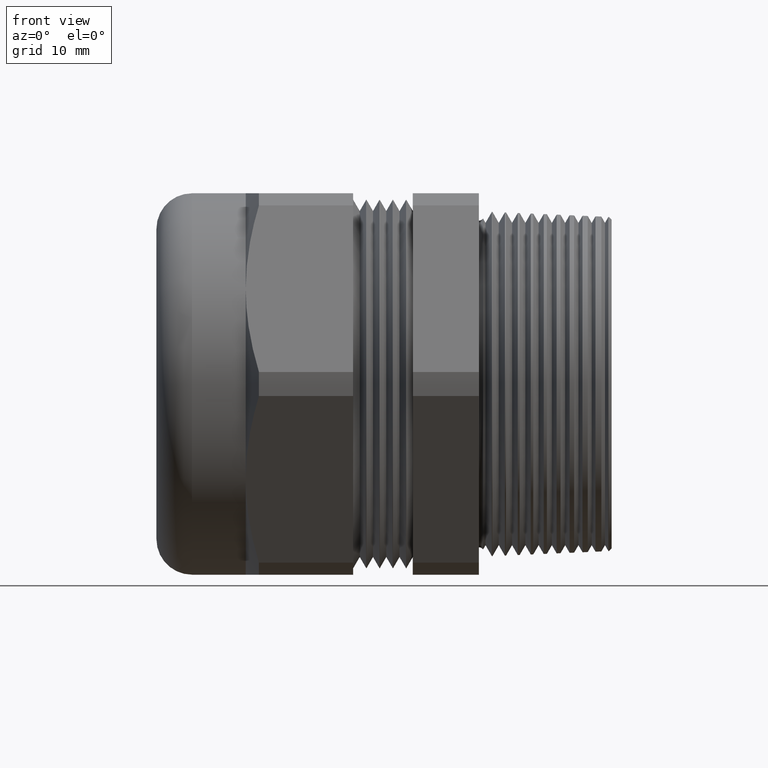
[diagram: clean part render]
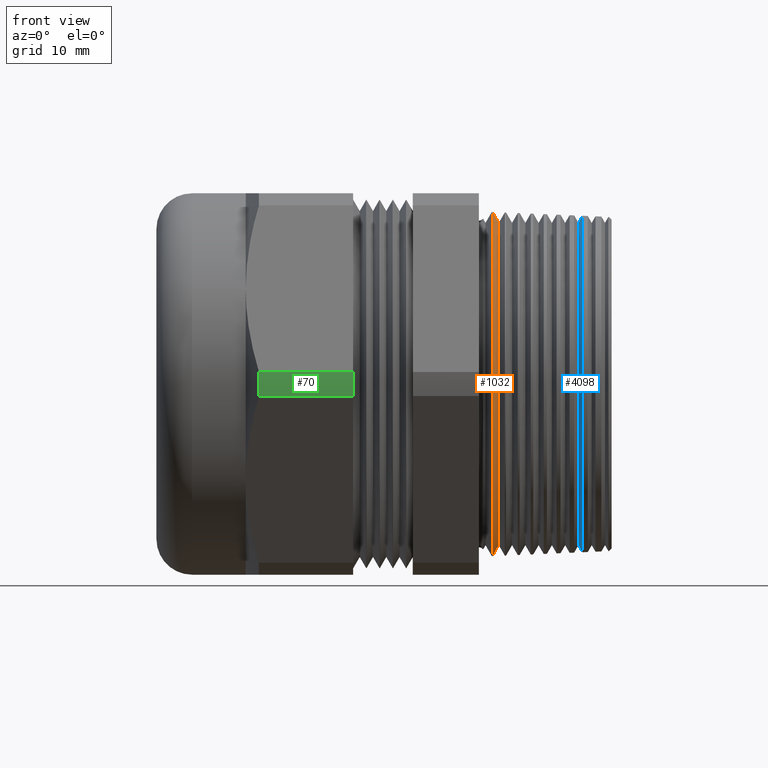
[diagram: same view with three faces highlighted in distinct colors, each labeled with its STEP entity id]
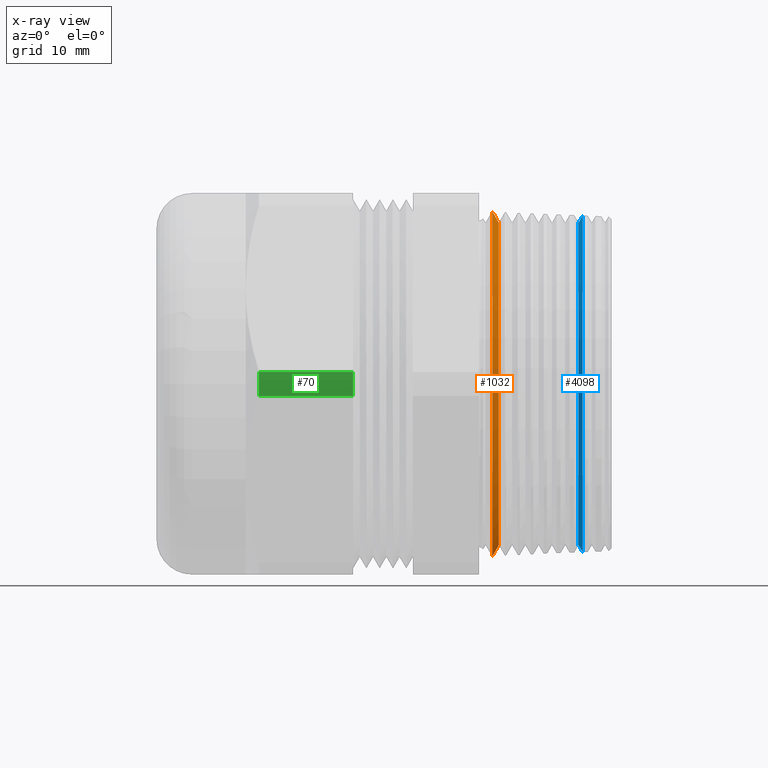
[diagram: x-ray of the same camera — body ghosted, the three highlighted faces saturated]
A machine part, front view with three faces highlighted in distinct colors.
The next image is the same camera in x-ray (body ghosted, the three faces saturated) — at least one of them is partly hidden behind the body in this view.
Their STEP definitions:

[orange] entity #1032 — the highlighted conical surface has half-angle 60 deg.
#92 = EDGE_CURVE ( 'NONE', #248, #245, #1228, .T. ) ;
#129 = VERTEX_POINT ( 'NONE', #1343 ) ;
#130 = VERTEX_POINT ( 'NONE', #1342 ) ;
#206 = EDGE_CURVE ( 'NONE', #130, #248, #1500, .T. ) ;
#245 = VERTEX_POINT ( 'NONE', #1549 ) ;
#247 = EDGE_CURVE ( 'NONE', #129, #245, #1547, .T. ) ;
#248 = VERTEX_POINT ( 'NONE', #1543 ) ;
#1032 = ADVANCED_FACE ( 'NONE', ( #2998 ), #2997, .T. ) ;
#1033 = EDGE_LOOP ( 'NONE', ( #1088, #1089, #1091, #1092 ) ) ;
#1088 = ORIENTED_EDGE ( 'NONE', *, *, #247, .F. ) ;
#1089 = ORIENTED_EDGE ( 'NONE', *, *, #1090, .T. ) ;
#1090 = EDGE_CURVE ( 'NONE', #129, #130, #3056, .T. ) ;
#1091 = ORIENTED_EDGE ( 'NONE', *, *, #206, .T. ) ;
#1092 = ORIENTED_EDGE ( 'NONE', *, *, #92, .T. ) ;
#1228 = CIRCLE ( 'NONE', #1284, 0.8171782303960559700 ) ;
#1281 = DIRECTION ( 'NONE',  ( 0.0000000000000000000, 0.0000000000000000000, 1.000000000000000000 ) ) ;
#1282 = DIRECTION ( 'NONE',  ( 1.000000000000000000, 0.0000000000000000000, 0.0000000000000000000 ) ) ;
#1283 = CARTESIAN_POINT ( 'NONE',  ( 0.06462914944042824600, 0.0000000000000000000, 0.0000000000000000000 ) ) ;
#1284 = AXIS2_PLACEMENT_3D ( 'NONE', #1283, #1282, #1281 ) ;
#1342 = CARTESIAN_POINT ( 'NONE',  ( 0.09483192707642887400, 0.0000000000000000000, 0.7648654850007971000 ) ) ;
#1343 = CARTESIAN_POINT ( 'NONE',  ( 0.09483192707642887400, 9.687223860859710200E-017, -0.7648654850007971000 ) ) ;
#1497 = DIRECTION ( 'NONE',  ( -0.4999999999999956700, 0.0000000000000000000, 0.8660254037844411500 ) ) ;
#1498 = VECTOR ( 'NONE', #1497, 39.37007874015748100 ) ;
#1499 = CARTESIAN_POINT ( 'NONE',  ( 0.06300000000000000000, 0.0000000000000000000, 0.8199999999999999500 ) ) ;
#1500 = LINE ( 'NONE', #1499, #1498 ) ;
#1543 = CARTESIAN_POINT ( 'NONE',  ( 0.06462914944042824600, 0.0000000000000000000, 0.8171782303960559700 ) ) ;
#1544 = DIRECTION ( 'NONE',  ( -0.4999999999999956700, 1.060575238724910100E-016, -0.8660254037844411500 ) ) ;
#1545 = VECTOR ( 'NONE', #1544, 39.37007874015748100 ) ;
#1546 = CARTESIAN_POINT ( 'NONE',  ( 0.06300000000000000000, 1.004210375300829600E-016, -0.8199999999999999500 ) ) ;
#1547 = LINE ( 'NONE', #1546, #1545 ) ;
#1549 = CARTESIAN_POINT ( 'NONE',  ( 0.06462914944042824600, 1.000822360223375900E-016, -0.8171782303960559700 ) ) ;
#2993 = DIRECTION ( 'NONE',  ( 0.0000000000000000000, 0.0000000000000000000, 1.000000000000000000 ) ) ;
#2994 = DIRECTION ( 'NONE',  ( -1.000000000000000000, 0.0000000000000000000, 0.0000000000000000000 ) ) ;
#2995 = AXIS2_PLACEMENT_3D ( 'NONE', #3002, #2994, #2993 ) ;
#2997 = CONICAL_SURFACE ( 'NONE', #2995, 0.8199999999999999500, 1.047197551196602700 ) ;
#2998 = FACE_OUTER_BOUND ( 'NONE', #1033, .T. ) ;
#3002 = CARTESIAN_POINT ( 'NONE',  ( 0.06300000000000000000, 0.0000000000000000000, 0.0000000000000000000 ) ) ;
#3049 = DIRECTION ( 'NONE',  ( -1.000000000000000000, 0.0000000000000000000, 0.0000000000000000000 ) ) ;
#3050 = CARTESIAN_POINT ( 'NONE',  ( 0.09483192707642887400, 0.0000000000000000000, 0.0000000000000000000 ) ) ;
#3051 = AXIS2_PLACEMENT_3D ( 'NONE', #3050, #3049, #3113 ) ;
#3056 = CIRCLE ( 'NONE', #3051, 0.7648654850007971000 ) ;
#3113 = DIRECTION ( 'NONE',  ( 0.0000000000000000000, 0.0000000000000000000, 1.000000000000000000 ) ) ;

[blue] entity #4098 — the highlighted conical surface has half-angle 60 deg.
#94 = ORIENTED_EDGE ( 'NONE', *, *, #3882, .T. ) ;
#595 = VERTEX_POINT ( 'NONE', #2250 ) ;
#610 = EDGE_CURVE ( 'NONE', #630, #595, #2228, .T. ) ;
#612 = VERTEX_POINT ( 'NONE', #2271 ) ;
#628 = VERTEX_POINT ( 'NONE', #2284 ) ;
#630 = VERTEX_POINT ( 'NONE', #2283 ) ;
#633 = EDGE_CURVE ( 'NONE', #628, #612, #2352, .T. ) ;
#2228 = LINE ( 'NONE', #2280, #2279 ) ;
#2250 = CARTESIAN_POINT ( 'NONE',  ( 0.4922552525212970400, 9.778898640255570800E-017, -0.7985076715232523000 ) ) ;
#2271 = CARTESIAN_POINT ( 'NONE',  ( 0.4922552525212970400, 0.0000000000000000000, 0.7985076715232523000 ) ) ;
#2278 = DIRECTION ( 'NONE',  ( 0.4999999999999994400, 0.0000000000000000000, -0.8660254037844389300 ) ) ;
#2279 = VECTOR ( 'NONE', #2278, 39.37007874015748100 ) ;
#2280 = CARTESIAN_POINT ( 'NONE',  ( 0.4728319270764289000, 0.0000000000000000000, -0.7648654850007971000 ) ) ;
#2283 = CARTESIAN_POINT ( 'NONE',  ( 0.4728319270764289000, 9.583553727457662100E-017, -0.7648654850007971000 ) ) ;
#2284 = CARTESIAN_POINT ( 'NONE',  ( 0.4728319270764289000, 0.0000000000000000000, 0.7648654850007971000 ) ) ;
#2349 = DIRECTION ( 'NONE',  ( 0.4999999999999994400, 1.060575238724907300E-016, 0.8660254037844389300 ) ) ;
#2350 = VECTOR ( 'NONE', #2349, 39.37007874015748100 ) ;
#2351 = CARTESIAN_POINT ( 'NONE',  ( 0.4728319270764289000, 9.366900679845139800E-017, 0.7648654850007971000 ) ) ;
#2352 = LINE ( 'NONE', #2351, #2350 ) ;
#3178 = DIRECTION ( 'NONE',  ( 0.0000000000000000000, 0.0000000000000000000, 1.000000000000000000 ) ) ;
#3179 = DIRECTION ( 'NONE',  ( -1.000000000000000000, 0.0000000000000000000, 0.0000000000000000000 ) ) ;
#3180 = CARTESIAN_POINT ( 'NONE',  ( 0.4728319270764289000, 0.0000000000000000000, 0.0000000000000000000 ) ) ;
#3181 = AXIS2_PLACEMENT_3D ( 'NONE', #3180, #3179, #3178 ) ;
#3182 = CIRCLE ( 'NONE', #3181, 0.7648654850007971000 ) ;
#3241 = DIRECTION ( 'NONE',  ( 0.0000000000000000000, 0.0000000000000000000, -1.000000000000000000 ) ) ;
#3242 = DIRECTION ( 'NONE',  ( -1.000000000000000000, 0.0000000000000000000, 0.0000000000000000000 ) ) ;
#3243 = CARTESIAN_POINT ( 'NONE',  ( 0.4922552525212970400, 0.0000000000000000000, 0.0000000000000000000 ) ) ;
#3244 = AXIS2_PLACEMENT_3D ( 'NONE', #3243, #3242, #3241 ) ;
#3245 = CIRCLE ( 'NONE', #3244, 0.7985076715232523000 ) ;
#3634 = DIRECTION ( 'NONE',  ( 0.0000000000000000000, 0.0000000000000000000, -1.000000000000000000 ) ) ;
#3635 = DIRECTION ( 'NONE',  ( 1.000000000000000000, 0.0000000000000000000, 0.0000000000000000000 ) ) ;
#3636 = CARTESIAN_POINT ( 'NONE',  ( 0.4728319270764289000, 0.0000000000000000000, 0.0000000000000000000 ) ) ;
#3637 = AXIS2_PLACEMENT_3D ( 'NONE', #3636, #3635, #3634 ) ;
#3639 = CONICAL_SURFACE ( 'NONE', #3637, 0.7648654850007971000, 1.047197551196598300 ) ;
#3640 = FACE_OUTER_BOUND ( 'NONE', #4099, .T. ) ;
#3831 = EDGE_CURVE ( 'NONE', #630, #628, #3182, .T. ) ;
#3882 = EDGE_CURVE ( 'NONE', #595, #612, #3245, .T. ) ;
#4095 = ORIENTED_EDGE ( 'NONE', *, *, #610, .T. ) ;
#4096 = ORIENTED_EDGE ( 'NONE', *, *, #3831, .F. ) ;
#4097 = ORIENTED_EDGE ( 'NONE', *, *, #633, .F. ) ;
#4098 = ADVANCED_FACE ( 'NONE', ( #3640 ), #3639, .T. ) ;
#4099 = EDGE_LOOP ( 'NONE', ( #4097, #4096, #4095, #94 ) ) ;

[green] entity #70 — the highlighted cylindrical surface (partial cylindrical patch) has radius 25.7454 mm, axis along (-1, 0, 0).
#67 = VERTEX_POINT ( 'NONE', #1213 ) ;
#69 = ORIENTED_EDGE ( 'NONE', *, *, #73, .F. ) ;
#70 = ADVANCED_FACE ( 'NONE', ( #1212 ), #1210, .T. ) ;
#73 = EDGE_CURVE ( 'NONE', #67, #80, #1202, .T. ) ;
#75 = EDGE_LOOP ( 'NONE', ( #69, #77, #409, #505 ) ) ;
#77 = ORIENTED_EDGE ( 'NONE', *, *, #78, .T. ) ;
#78 = EDGE_CURVE ( 'NONE', #67, #79, #1197, .T. ) ;
#79 = VERTEX_POINT ( 'NONE', #1256 ) ;
#80 = VERTEX_POINT ( 'NONE', #1255 ) ;
#409 = ORIENTED_EDGE ( 'NONE', *, *, #421, .T. ) ;
#412 = VERTEX_POINT ( 'NONE', #1866 ) ;
#421 = EDGE_CURVE ( 'NONE', #79, #412, #1913, .T. ) ;
#498 = EDGE_CURVE ( 'NONE', #80, #412, #2059, .T. ) ;
#505 = ORIENTED_EDGE ( 'NONE', *, *, #498, .F. ) ;
#1194 = DIRECTION ( 'NONE',  ( 1.000000000000000000, 0.0000000000000000000, 0.0000000000000000000 ) ) ;
#1195 = VECTOR ( 'NONE', #1194, 39.37007874015748100 ) ;
#1196 = CARTESIAN_POINT ( 'NONE',  ( -4.001812670979164800, -1.011985306278741600, -0.05719003301206798000 ) ) ;
#1197 = LINE ( 'NONE', #1196, #1195 ) ;
#1198 = DIRECTION ( 'NONE',  ( 0.0000000000000000000, 0.0000000000000000000, -1.000000000000000000 ) ) ;
#1199 = DIRECTION ( 'NONE',  ( -1.000000000000000000, 0.0000000000000000000, 0.0000000000000000000 ) ) ;
#1200 = CARTESIAN_POINT ( 'NONE',  ( -1.043549760766007100, 0.0000000000000000000, 0.0000000000000000000 ) ) ;
#1201 = AXIS2_PLACEMENT_3D ( 'NONE', #1200, #1199, #1198 ) ;
#1202 = CIRCLE ( 'NONE', #1201, 1.013600000000000100 ) ;
#1207 = DIRECTION ( 'NONE',  ( 0.0000000000000000000, 0.0000000000000000000, 1.000000000000000000 ) ) ;
#1208 = DIRECTION ( 'NONE',  ( -1.000000000000000000, 0.0000000000000000000, 0.0000000000000000000 ) ) ;
#1209 = AXIS2_PLACEMENT_3D ( 'NONE', #1211, #1208, #1207 ) ;
#1210 = CYLINDRICAL_SURFACE ( 'NONE', #1209, 1.013600000000000100 ) ;
#1211 = CARTESIAN_POINT ( 'NONE',  ( -0.7238591030180623300, 0.0000000000000000000, 0.0000000000000000000 ) ) ;
#1212 = FACE_OUTER_BOUND ( 'NONE', #75, .T. ) ;
#1213 = CARTESIAN_POINT ( 'NONE',  ( -1.043549760766007100, -1.011985306278741600, -0.05719003301206799400 ) ) ;
#1255 = CARTESIAN_POINT ( 'NONE',  ( -1.043549760766007100, -1.011985306278742100, 0.05719003301206734100 ) ) ;
#1256 = CARTESIAN_POINT ( 'NONE',  ( -0.5962499999999999500, -1.011985306278741600, -0.05719003301206798000 ) ) ;
#1866 = CARTESIAN_POINT ( 'NONE',  ( -0.5962500000000000600, -1.011985306278741600, 0.05719003301206736200 ) ) ;
#1909 = DIRECTION ( 'NONE',  ( 0.0000000000000000000, 0.0000000000000000000, 1.000000000000000000 ) ) ;
#1910 = DIRECTION ( 'NONE',  ( -1.000000000000000000, 0.0000000000000000000, 0.0000000000000000000 ) ) ;
#1911 = CARTESIAN_POINT ( 'NONE',  ( -0.5962500000000000600, 0.0000000000000000000, 0.0000000000000000000 ) ) ;
#1912 = AXIS2_PLACEMENT_3D ( 'NONE', #1911, #1910, #1909 ) ;
#1913 = CIRCLE ( 'NONE', #1912, 1.013600000000000100 ) ;
#2056 = DIRECTION ( 'NONE',  ( 1.000000000000000000, 0.0000000000000000000, 0.0000000000000000000 ) ) ;
#2057 = VECTOR ( 'NONE', #2056, 39.37007874015748100 ) ;
#2058 = CARTESIAN_POINT ( 'NONE',  ( -4.001812670979164800, -1.011985306278741600, 0.05719003301206736200 ) ) ;
#2059 = LINE ( 'NONE', #2058, #2057 ) ;